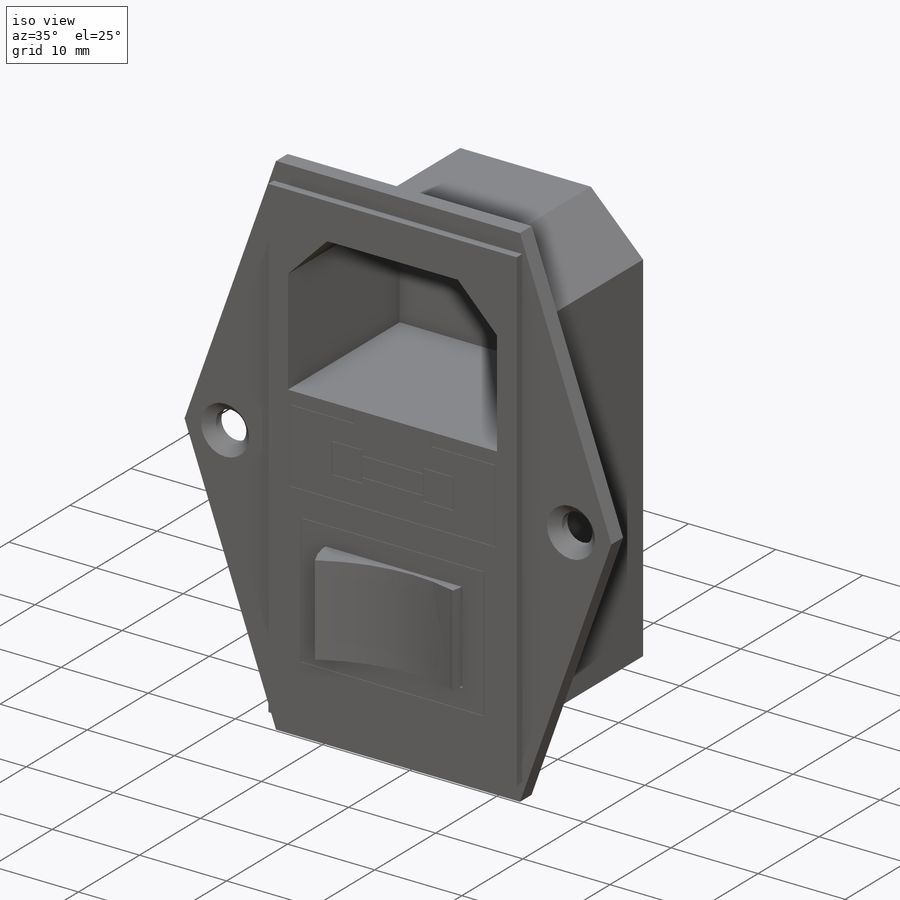
[diagram: iso view]
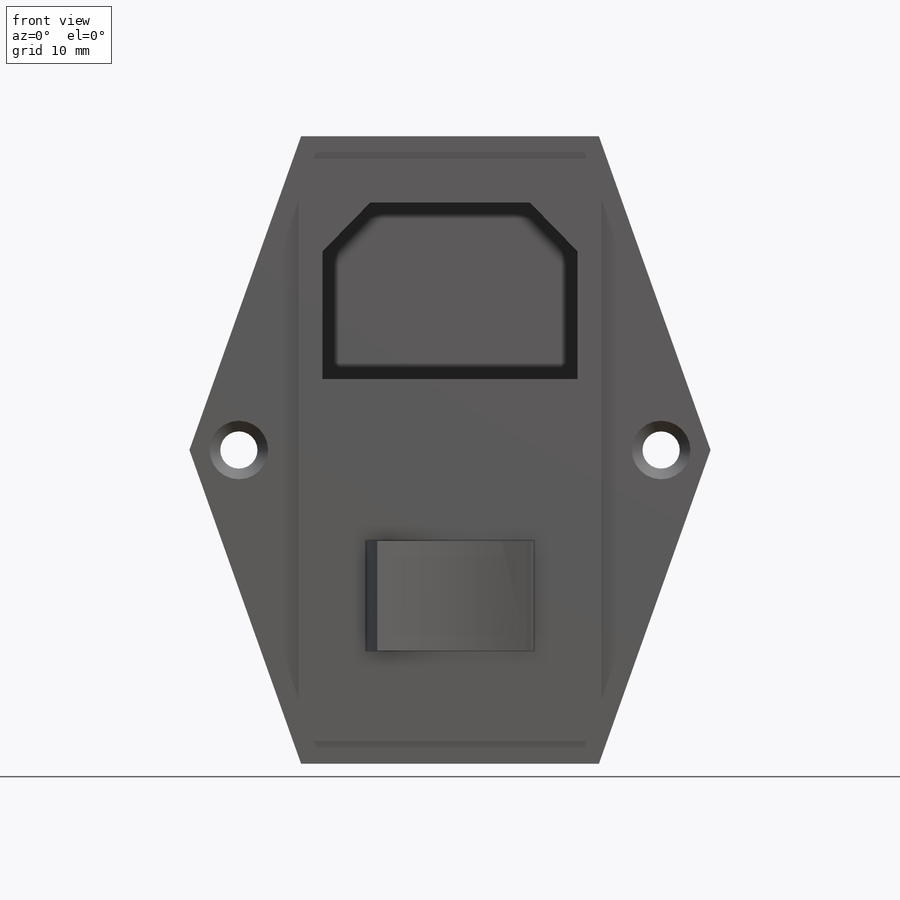
[diagram: front view]
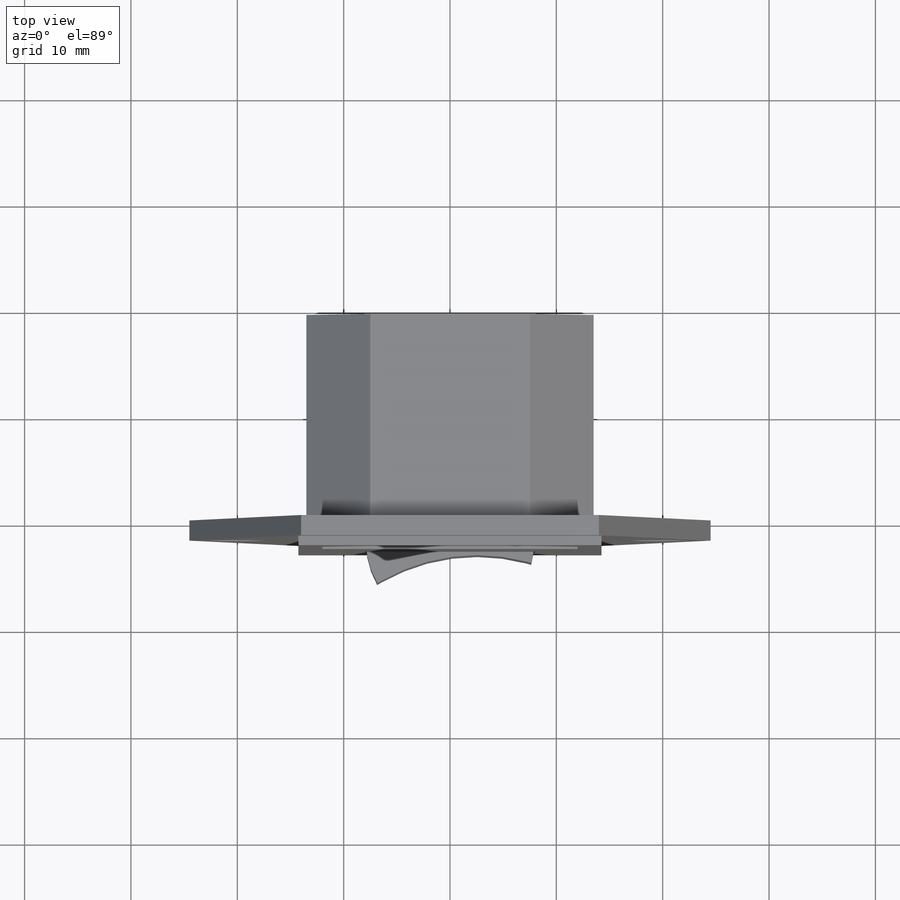
[diagram: top view]
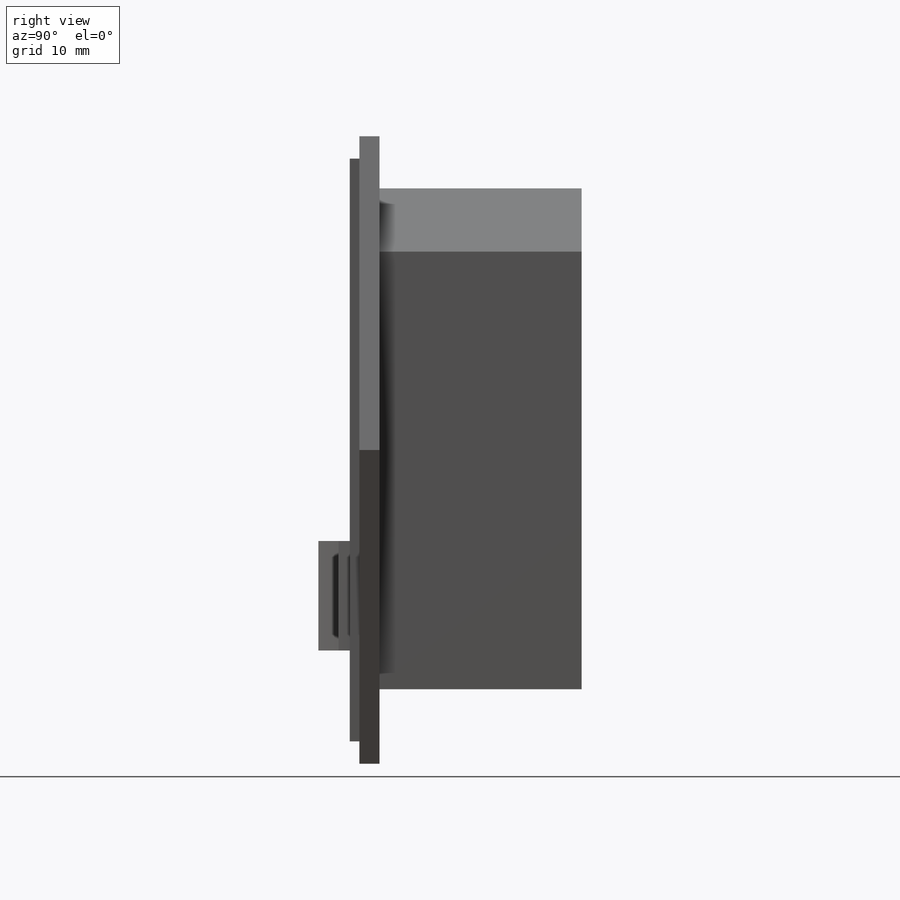
[diagram: right view]
SOLIDWORKS PART (.sldprt)
format: sldprt  version: not decoded by parser v0  size: 467,968 bytes
history: native  units: mm
features: sketch x11, cut_extrude x5, extrude x4, revolve x2, material x1, chamfer x1, fillet x1 (+13 scaffold rows collapsed)
feature tree (38):
  scaffold x13  (default folders/planes/origin — collapsed)
  material  "ABS"
  sketch  "Sketch1"  dims[c1.D4=~3.092641mm c1.D5=3.5mm c1.D1=29.5mm c1.D2=24.5mm c1.D3=14.0mm c2.D4=19.85mm]
  extrude  "Boss-Extrude1"  Depth=1.9mm
  sketch  "Sketch2"  dims[D1=54.8mm D2=28.5mm]
  extrude  "Boss-Extrude2"  Depth=0.9mm
  chamfer  "Chamfer1"  Distance=1mm Angle=45deg
  sketch  "Sketch3"  dims[D1=13.5mm D2=47.1mm D3=7.0mm D4=7.5mm D5=5.95mm]
  extrude  "Boss-Extrude3"  Depth=19mm
  sketch  "Sketch4"  dims[D1=16.6mm D2=4.15mm D3=12.0mm D4=7.5mm D5=12.0mm]
  cut_extrude  "Cut-Extrude1"  Depth=18.3mm
  sketch  "Sketch5"  dims[D1=1.5mm D2=4.5mm D3=11.75mm D4=8.4mm D6=7.0mm D7=3.5mm D8=1.75mm D9=1.1mm D12=21.0mm D13=15.0mm D14=6.2mm D16=16.0mm D17=10.5mm D5=0.05mm D10=0.05mm D11=0.05mm D15=0.05mm]
  cut_extrude  "Cut-Extrude2"  Depth=0.05mm
  sketch  "Sketch6"  dims[D1=24.0mm D2=15.5mm D3=1.25mm]
  cut_extrude  "Cut-Extrude3"  [1 undecoded]
  sketch  "Sketch7"  dims[c1.D1=7.0mm c1.D2=7.0mm c2.D2=120.0deg c2.D3=8.5mm]
  cut_extrude  "Cut-Extrude4"  [1 undecoded]
  sketch  "Sketch8"  dims[D1=20.0mm D2=13.0mm]
  extrude  "Boss-Extrude4"  Depth=14mm
  cut_extrude  "Cut-Extrude6"  [1 undecoded]
  sketch  "Sketch5<3>"  dims[D1=1.0mm]
  sketch  "Sketch10"  dims[c1.D1=0.1mm c1.D2=0.1mm c2.D1=0.0mm]
  revolve  "Revolve2"  Angle=30deg
  revolve  "Revolve3"  [1 undecoded]
  sketch  "Sketch10<6>"  dims[D1=15.0deg]
  fillet  "Fillet1"  Radius=18mm
decode coverage: 20 of 24 modeling features carry decoded parameters
note: ~ marks probable driven/reference dimensions
note: 4 parameter values undecoded
summary: no parameter record found for 4 features
note: suppression state not decoded; provenance and decode notes live in map.json
